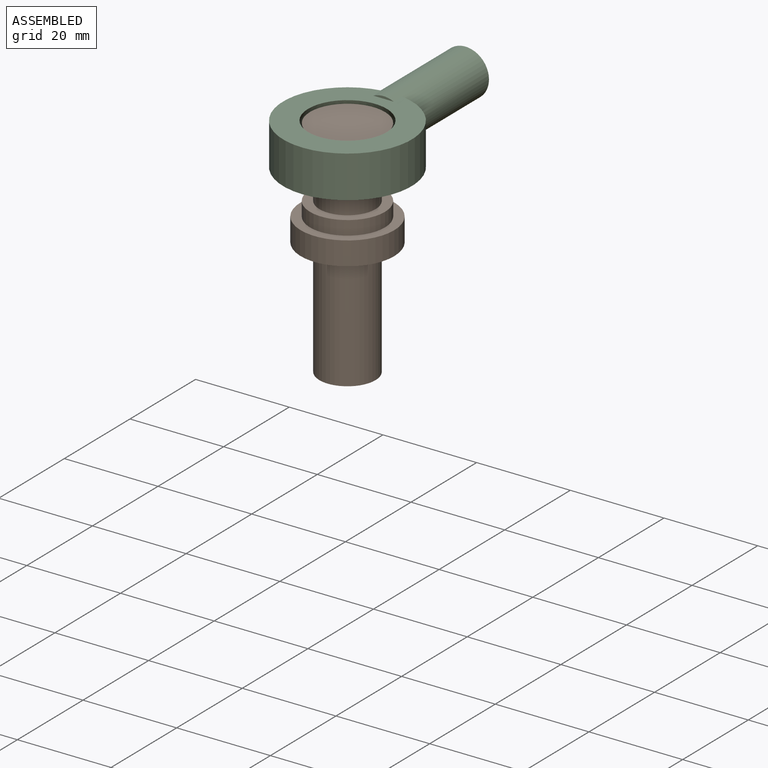
[diagram: assembled view]
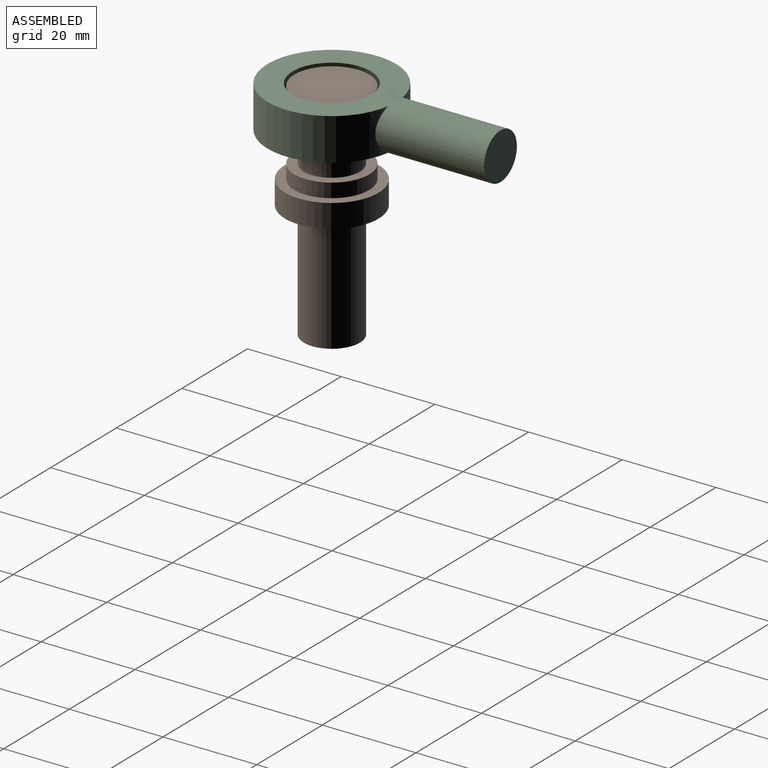
[diagram: assembled view, second angle]
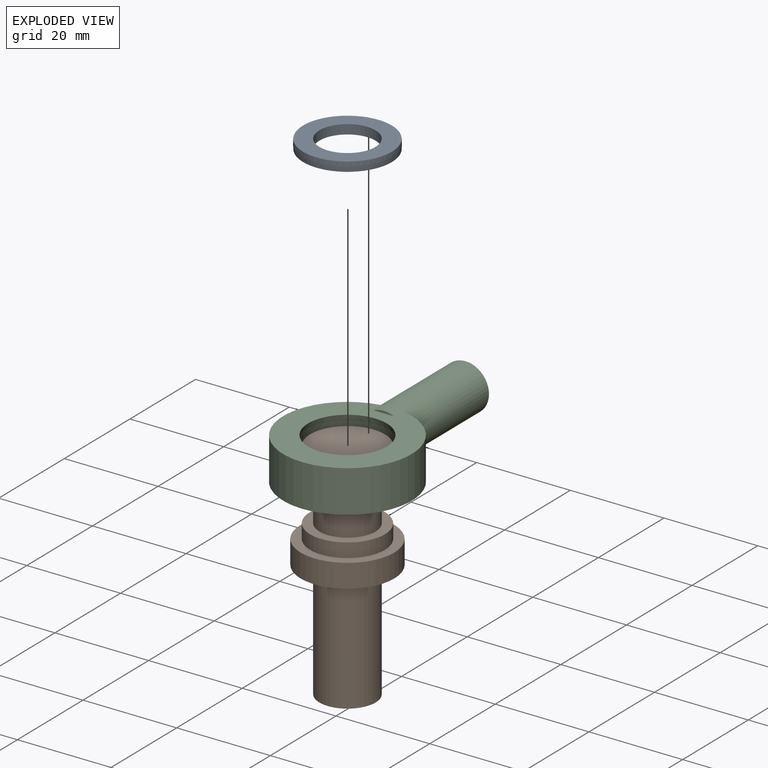
[diagram: exploded view]
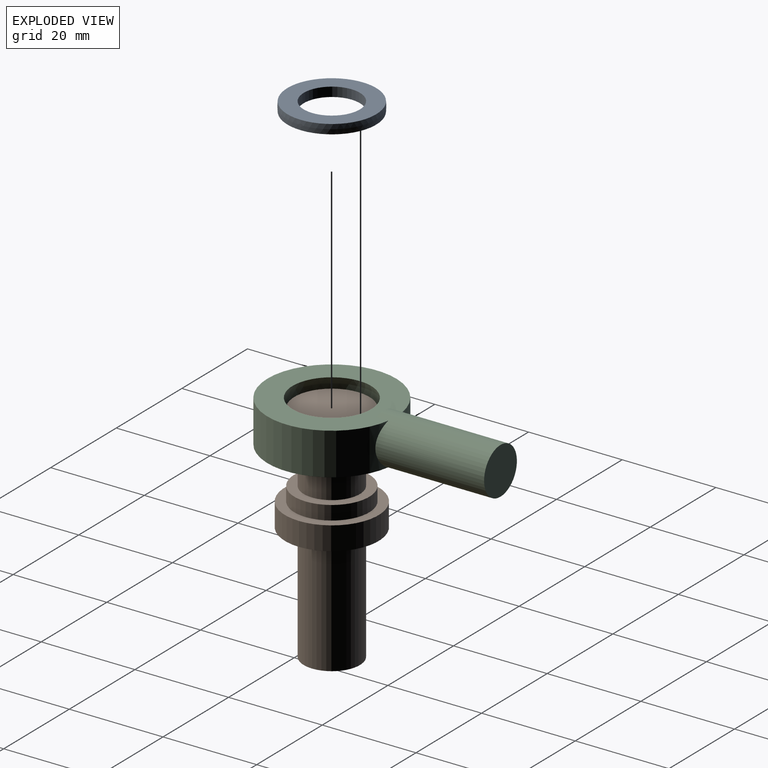
[diagram: exploded view, second angle]
ASSEMBLY  parts=3 mates=2
PART A: 4 faces, bbox 19.1x19.1x2 mm
  f0: cylinder r=6mm len=12mm, axis (0,0,1), area 75.4mm2, adj f1,f3
  f1: plane 18.96x18.96mm, normal (0,0,-1), area 169.2mm2, adj f0,f2
  f2: sphere r=9.53mm, area 119.8mm2, adj f1,f3
  f3: plane 18.96x18.96mm, normal (0,0,1), area 169.2mm2, adj f0,f2
PART B: 11 faces, bbox 20x20x48 mm
  f0: cylinder r=10mm len=20mm, axis (0,0,-1), area 314.2mm2, adj f1,f2
  f1: plane 20x20mm, normal (0,0,1), area 113.1mm2, adj f0,f3
  f2: plane 20x20mm, normal (0,0,-1), area 201.1mm2, adj f0,f9
  f3: cylinder r=8mm len=16mm, axis (0,0,-1), area 150.8mm2, adj f1,f4
  f4: plane 16x16mm, normal (0,0,1), area 88mm2, adj f3,f5
  f5: cylinder r=6mm len=12mm, axis (0,0,-1), area 452.4mm2, adj f4,f8
  f6: cylinder r=8mm len=16mm, axis (0,0,-1), area 150.8mm2, adj f7,f8
  f7: plane 16x16mm, normal (0,0,1), area 201.1mm2, adj f6
  f8: plane 16x16mm, normal (0,0,-1), area 88mm2, adj f5,f6
  f9: cylinder r=6mm len=25mm, axis (0,0,1), area 942.5mm2, adj f2,f10
  f10: plane 12x12mm, normal (0,0,-1), area 113.1mm2, adj f9
PART C: 8 faces, bbox 27.5x49.7x10 mm
  f0: plane 27.46x27.29mm, normal (0,0,1), area 358.9mm2, adj f1,f3,f4,f5
  f1: sphere r=9.53mm, area 539mm2, adj f0,f2
  f2: plane 27.46x27.29mm, normal (0,0,-1), area 358.9mm2, adj f1,f3,f5,f7
  f3: cylinder r=13.73mm len=27.46mm, axis (0,0,1), area 699.5mm2, adj f0,f2,f5
  f4: plane 4.36x0.5mm, normal (0,-1,0), area 1.5mm2, adj f0,f5
  f5: cylinder r=5mm len=25mm, axis (0,-1,0), area 738.4mm2, adj f0,f2,f3,f4,f6,f7
  f6: plane 10x10mm, normal (0,1,0), area 78.5mm2, adj f5
  f7: plane 4.36x0.5mm, normal (0,-1,0), area 1.5mm2, adj f2,f5
PLACE A t=(-37.13,26.55,-14.65)mm
PLACE B t=(-37.13,26.55,-19.65)mm
PLACE C t=(-37.13,26.55,-14.65)mm
MATE ball C.f3 <-> A.f0  axis (0,0,1) through (17.87,26.55,19.35)mm
MATE fastened B.f0 <-> A.f0  axis (0,0,-1) through (17.87,26.55,20.35)mm
